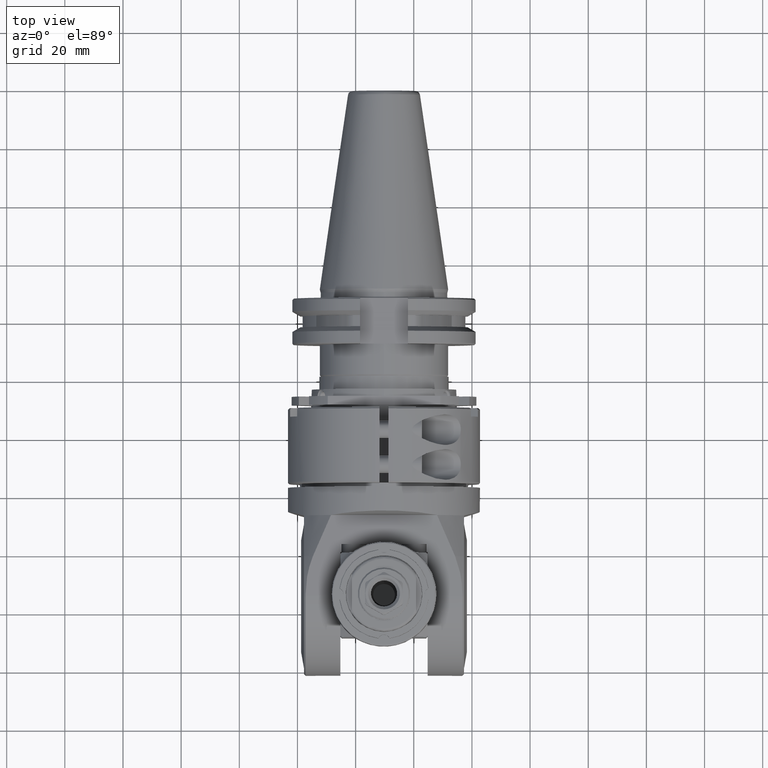
[diagram: clean part render]
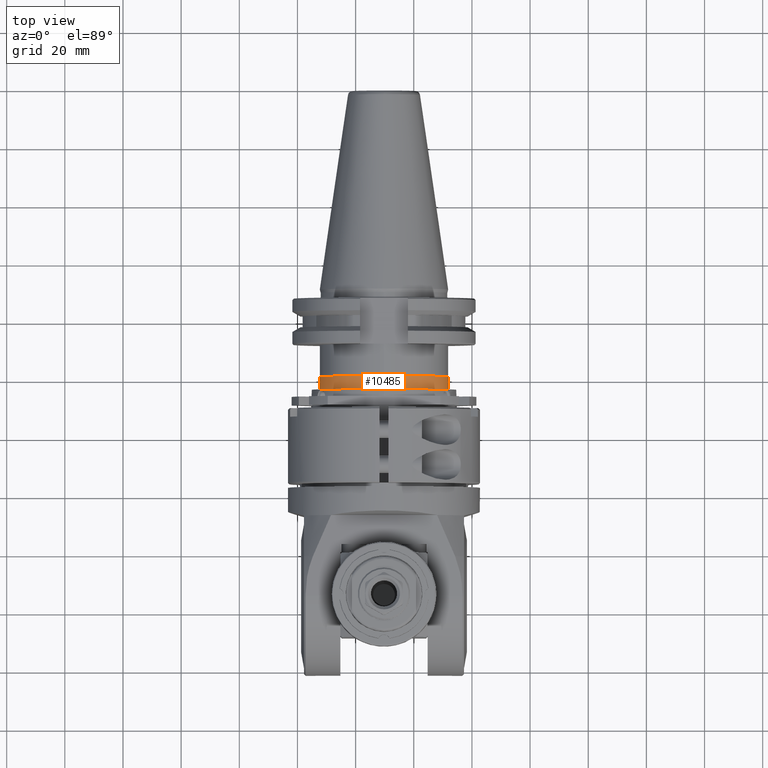
[diagram: same view with one face highlighted and labeled with its STEP entity id]
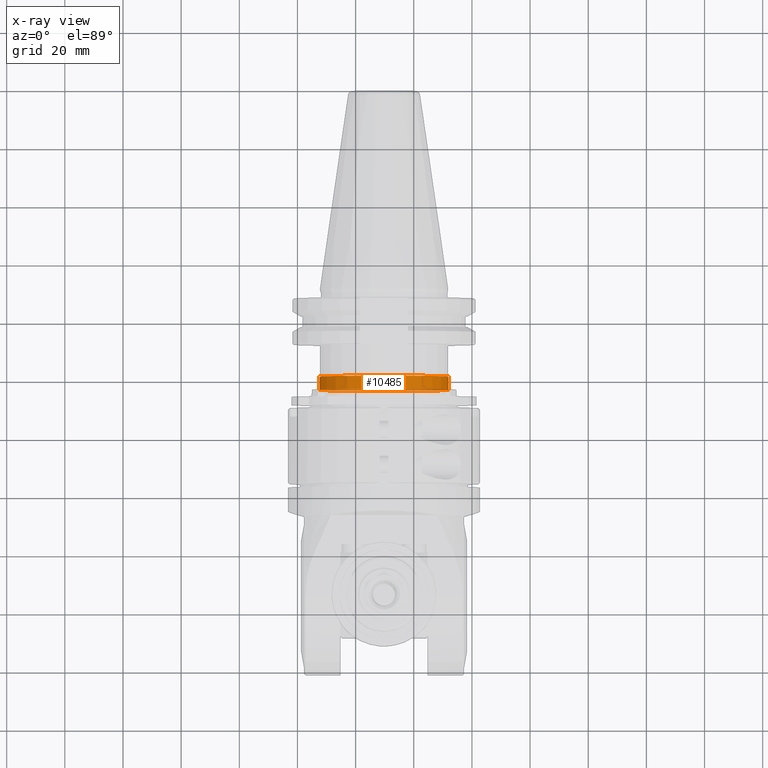
[diagram: x-ray of the same camera — body ghosted, the highlighted face saturated]
A machine part, top view. The second image highlights one B-rep face of the part: STEP entity #10485.
The next image is the same camera in x-ray: the body ghosted, the highlighted face saturated — about 12% of this face is hidden behind the body in this view.
In plain terms, the highlighted cylindrical surface (bore or boss wall) has radius 22.225 mm, axis along (0, -1, 0).
Its self-contained STEP definition (entity closure, byte-faithful):
#1101=LINE('',#19789,#1937);
#1937=VECTOR('',#14457,22.225);
#2140=CYLINDRICAL_SURFACE('',#11577,22.225);
#2791=FACE_OUTER_BOUND('',#3478,.T.);
#3478=EDGE_LOOP('',(#9279,#9280,#9281,#9282));
#3988=CIRCLE('',#11576,22.225);
#3989=CIRCLE('',#11578,22.225);
#4946=VERTEX_POINT('',#19785);
#4947=VERTEX_POINT('',#19788);
#6409=EDGE_CURVE('',#4946,#4946,#3988,.T.);
#6410=EDGE_CURVE('',#4946,#4947,#1101,.T.);
#6411=EDGE_CURVE('',#4947,#4947,#3989,.T.);
#9279=ORIENTED_EDGE('',*,*,#6409,.F.);
#9280=ORIENTED_EDGE('',*,*,#6410,.T.);
#9281=ORIENTED_EDGE('',*,*,#6411,.F.);
#9282=ORIENTED_EDGE('',*,*,#6410,.F.);
#10485=ADVANCED_FACE('',(#2791),#2140,.T.);
#11576=AXIS2_PLACEMENT_3D('',#19786,#14453,#14454);
#11577=AXIS2_PLACEMENT_3D('',#19787,#14455,#14456);
#11578=AXIS2_PLACEMENT_3D('',#19790,#14458,#14459);
#14453=DIRECTION('center_axis',(0.,-1.,0.));
#14454=DIRECTION('ref_axis',(-1.,0.,0.));
#14455=DIRECTION('center_axis',(0.,-1.,0.));
#14456=DIRECTION('ref_axis',(1.,0.,0.));
#14457=DIRECTION('',(0.,1.,0.));
#14458=DIRECTION('center_axis',(0.,1.,0.));
#14459=DIRECTION('ref_axis',(1.,0.,0.));
#19785=CARTESIAN_POINT('',(-22.225,32.50000004466,0.));
#19786=CARTESIAN_POINT('Origin',(0.,32.50000004466,0.));
#19787=CARTESIAN_POINT('Origin',(0.,42.47500004466,0.));
#19788=CARTESIAN_POINT('',(-22.225,37.00000004466,0.));
#19789=CARTESIAN_POINT('',(-22.225,42.47500004466,-2.72177751110499E-15));
#19790=CARTESIAN_POINT('Origin',(0.,37.00000004466,0.));